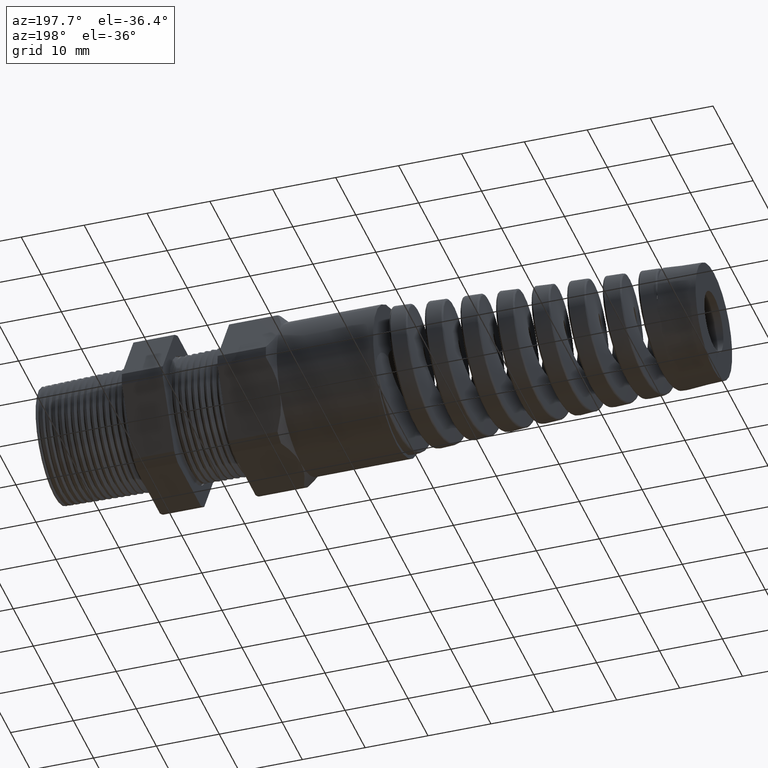
[diagram: clean part render]
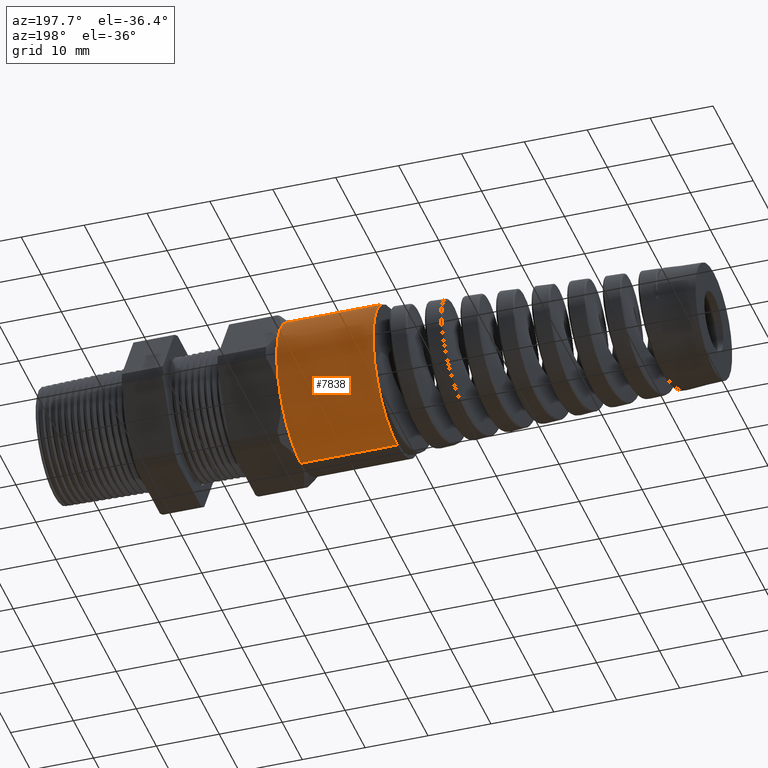
[diagram: same view with one face highlighted and labeled with its STEP entity id]
A machine part, auxiliary view. The second image highlights one B-rep face of the part: STEP entity #7838.
In plain terms, the highlighted cylindrical surface (partial cylindrical patch) has radius 11.938 mm, axis along (1, 0, 0).
Its self-contained STEP definition (entity closure, byte-faithful):
#2181 = DIRECTION ( 'NONE',  ( 1.000000000000000000, 0.0000000000000000000, 0.0000000000000000000 ) ) ;
#2429 = CYLINDRICAL_SURFACE ( 'NONE', #2493, 0.4699999999999999200 ) ;
#2430 = CARTESIAN_POINT ( 'NONE',  ( 1.326736918405036800, 0.0000000000000000000, 0.0000000000000000000 ) ) ;
#2431 = FACE_OUTER_BOUND ( 'NONE', #7810, .T. ) ;
#2447 = CARTESIAN_POINT ( 'NONE',  ( -1.866920391036122300, 0.0000000000000000000, -0.4699999999999999200 ) ) ;
#2453 = CARTESIAN_POINT ( 'NONE',  ( -1.263700787401574700, 0.4070319397786864000, 0.2350000000000000100 ) ) ;
#2454 = CARTESIAN_POINT ( 'NONE',  ( -1.866920391036122300, 5.755839955992558400E-017, 0.4699999999999999200 ) ) ;
#2464 = VECTOR ( 'NONE', #2181, 39.37007874015748100 ) ;
#2465 = CARTESIAN_POINT ( 'NONE',  ( 1.326736918405036800, 0.0000000000000000000, -0.4699999999999999200 ) ) ;
#2466 = LINE ( 'NONE', #2465, #2464 ) ;
#2467 = DIRECTION ( 'NONE',  ( 0.0000000000000000000, 0.0000000000000000000, -1.000000000000000000 ) ) ;
#2468 = DIRECTION ( 'NONE',  ( 1.000000000000000000, 0.0000000000000000000, 0.0000000000000000000 ) ) ;
#2469 = AXIS2_PLACEMENT_3D ( 'NONE', #2476, #2468, #2467 ) ;
#2470 = CIRCLE ( 'NONE', #2469, 0.4699999999999999200 ) ;
#2476 = CARTESIAN_POINT ( 'NONE',  ( -1.263700787401574400, 0.0000000000000000000, 0.0000000000000000000 ) ) ;
#2486 = DIRECTION ( 'NONE',  ( 0.0000000000000000000, 0.0000000000000000000, 1.000000000000000000 ) ) ;
#2487 = DIRECTION ( 'NONE',  ( -1.000000000000000000, 0.0000000000000000000, 0.0000000000000000000 ) ) ;
#2488 = CARTESIAN_POINT ( 'NONE',  ( -1.866920391036122300, 0.0000000000000000000, 0.0000000000000000000 ) ) ;
#2489 = AXIS2_PLACEMENT_3D ( 'NONE', #2488, #2487, #2486 ) ;
#2490 = CIRCLE ( 'NONE', #2489, 0.4699999999999999200 ) ;
#2491 = DIRECTION ( 'NONE',  ( 0.0000000000000000000, 0.0000000000000000000, -1.000000000000000000 ) ) ;
#2492 = DIRECTION ( 'NONE',  ( 1.000000000000000000, 0.0000000000000000000, 0.0000000000000000000 ) ) ;
#2493 = AXIS2_PLACEMENT_3D ( 'NONE', #2430, #2492, #2491 ) ;
#2497 = DIRECTION ( 'NONE',  ( 0.0000000000000000000, 0.0000000000000000000, -1.000000000000000000 ) ) ;
#2498 = DIRECTION ( 'NONE',  ( 1.000000000000000000, 0.0000000000000000000, 0.0000000000000000000 ) ) ;
#2499 = CARTESIAN_POINT ( 'NONE',  ( -1.263700787401574400, 0.0000000000000000000, 0.0000000000000000000 ) ) ;
#2500 = AXIS2_PLACEMENT_3D ( 'NONE', #2499, #2498, #2497 ) ;
#2501 = CIRCLE ( 'NONE', #2500, 0.4699999999999999200 ) ;
#2508 = CARTESIAN_POINT ( 'NONE',  ( -1.263700787401574700, 0.0000000000000000000, 0.4699999999999999200 ) ) ;
#2509 = DIRECTION ( 'NONE',  ( 1.000000000000000000, 0.0000000000000000000, 0.0000000000000000000 ) ) ;
#2510 = VECTOR ( 'NONE', #2509, 39.37007874015748100 ) ;
#2511 = CARTESIAN_POINT ( 'NONE',  ( 1.326736918405036800, 5.755839955992558400E-017, 0.4699999999999999200 ) ) ;
#2512 = LINE ( 'NONE', #2511, #2510 ) ;
#2517 = DIRECTION ( 'NONE',  ( 0.0000000000000000000, 0.0000000000000000000, -1.000000000000000000 ) ) ;
#2518 = DIRECTION ( 'NONE',  ( 1.000000000000000000, 0.0000000000000000000, 0.0000000000000000000 ) ) ;
#2519 = CARTESIAN_POINT ( 'NONE',  ( -1.263700787401574400, 0.0000000000000000000, 0.0000000000000000000 ) ) ;
#2520 = AXIS2_PLACEMENT_3D ( 'NONE', #2519, #2518, #2517 ) ;
#2521 = CIRCLE ( 'NONE', #2520, 0.4699999999999999200 ) ;
#2522 = CARTESIAN_POINT ( 'NONE',  ( -1.263700787401574700, 0.0000000000000000000, -0.4700000000000002000 ) ) ;
#2523 = CARTESIAN_POINT ( 'NONE',  ( -1.263700787401574700, 0.4070319397786864600, -0.2350000000000001300 ) ) ;
#7676 = VERTEX_POINT ( 'NONE', #2454 ) ;
#7677 = VERTEX_POINT ( 'NONE', #2453 ) ;
#7681 = ORIENTED_EDGE ( 'NONE', *, *, #7864, .F. ) ;
#7684 = VERTEX_POINT ( 'NONE', #2447 ) ;
#7810 = EDGE_LOOP ( 'NONE', ( #7844, #7882, #7884, #7681, #7859, #7861 ) ) ;
#7838 = ADVANCED_FACE ( 'NONE', ( #2431 ), #2429, .T. ) ;
#7839 = EDGE_CURVE ( 'NONE', #7676, #7684, #2490, .T. ) ;
#7844 = ORIENTED_EDGE ( 'NONE', *, *, #7839, .F. ) ;
#7858 = EDGE_CURVE ( 'NONE', #7863, #7862, #2470, .T. ) ;
#7859 = ORIENTED_EDGE ( 'NONE', *, *, #7858, .F. ) ;
#7860 = EDGE_CURVE ( 'NONE', #7684, #7863, #2466, .T. ) ;
#7861 = ORIENTED_EDGE ( 'NONE', *, *, #7860, .F. ) ;
#7862 = VERTEX_POINT ( 'NONE', #2523 ) ;
#7863 = VERTEX_POINT ( 'NONE', #2522 ) ;
#7864 = EDGE_CURVE ( 'NONE', #7862, #7677, #2521, .T. ) ;
#7866 = EDGE_CURVE ( 'NONE', #7676, #7869, #2512, .T. ) ;
#7869 = VERTEX_POINT ( 'NONE', #2508 ) ;
#7878 = EDGE_CURVE ( 'NONE', #7677, #7869, #2501, .T. ) ;
#7882 = ORIENTED_EDGE ( 'NONE', *, *, #7866, .T. ) ;
#7884 = ORIENTED_EDGE ( 'NONE', *, *, #7878, .F. ) ;